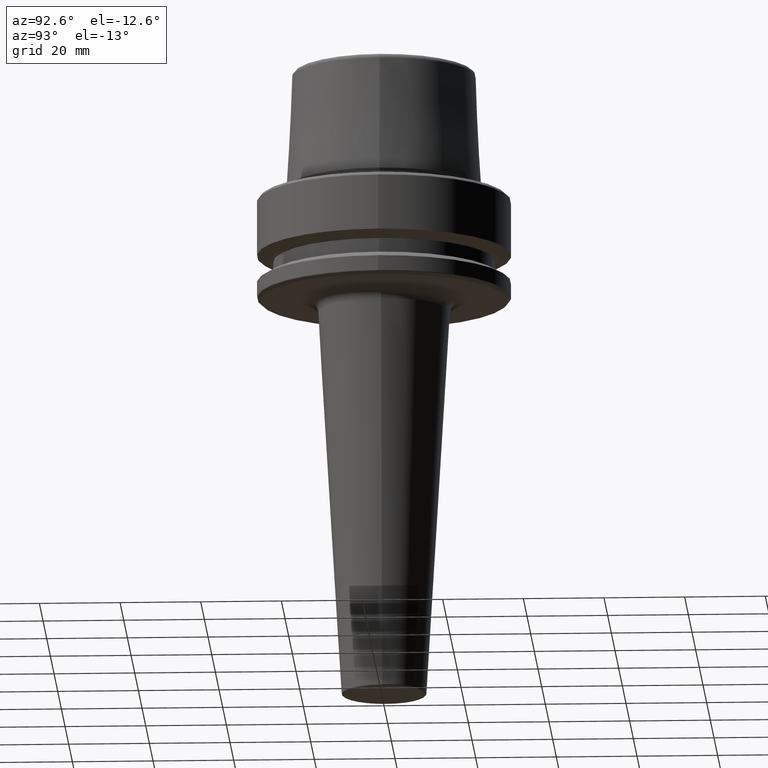
[diagram: clean part render]
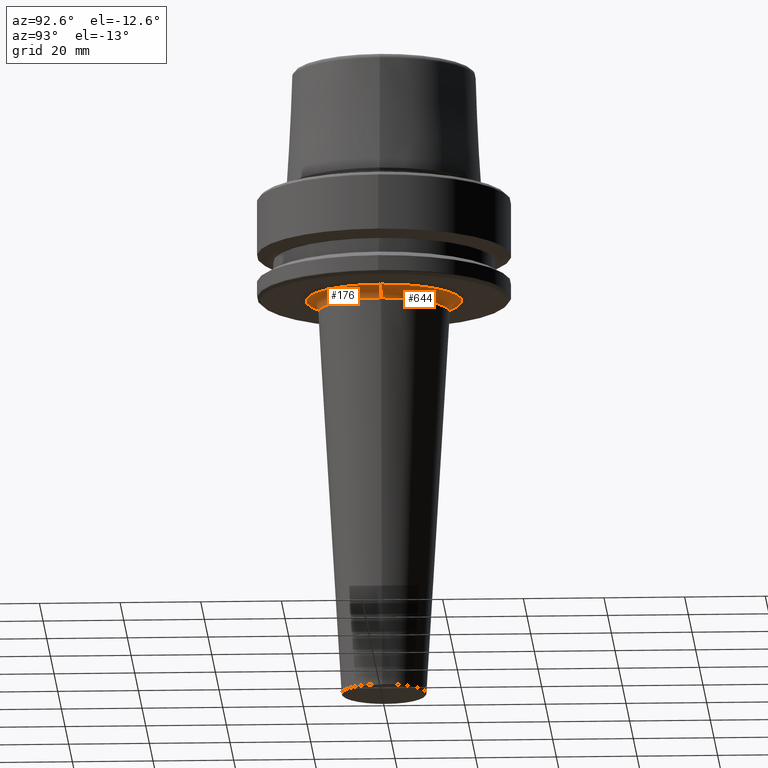
[diagram: same view with one multi-face feature highlighted, each face labeled with its STEP entity id]
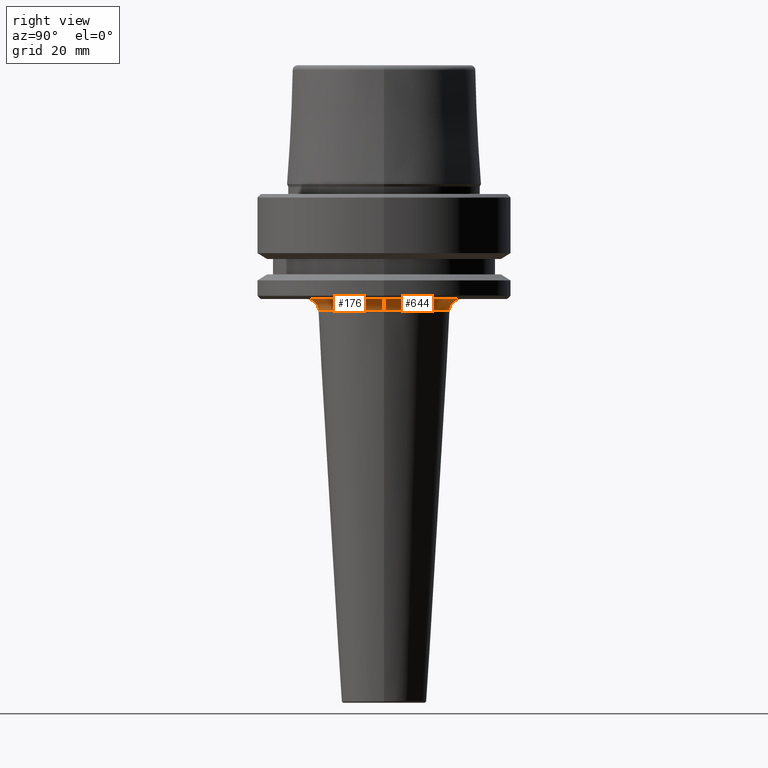
[diagram: same view with one multi-face feature highlighted, each face labeled with its STEP entity id]
A machine part, auxiliary view. The highlighted faces form ONE feature: a constant-radius fillet chain: 2 tangent blend faces with common blend radius 3 mm. The faces share edges in the B-rep.
A second angle (right view) of the same feature is appended — it is thin or edge-on in the first view.
Their STEP definitions:
[1] entity #644 (Torus):
#125 = DIRECTION ( 'NONE',  ( 1.224646799147353200E-016, 1.000000000000000000, 0.0000000000000000000 ) ) ;
#224 = DIRECTION ( 'NONE',  ( 0.0000000000000000000, -1.000000000000000000, 0.0000000000000000000 ) ) ;
#291 = EDGE_CURVE ( 'NONE', #571, #870, #566, .T. ) ;
#311 = ORIENTED_EDGE ( 'NONE', *, *, #333, .T. ) ;
#333 = EDGE_CURVE ( 'NONE', #814, #1257, #508, .T. ) ;
#403 = CARTESIAN_POINT ( 'NONE',  ( 0.0000000000000000000, 0.0000000000000000000, -28.82032312781617000 ) ) ;
#430 = CARTESIAN_POINT ( 'NONE',  ( 0.0000000000000000000, 0.0000000000000000000, -26.00000000000001100 ) ) ;
#437 = CARTESIAN_POINT ( 'NONE',  ( -19.32539514872835800, 2.366678331114797300E-015, -26.00000000000001100 ) ) ;
#462 = AXIS2_PLACEMENT_3D ( 'NONE', #809, #224, #909 ) ;
#499 = DIRECTION ( 'NONE',  ( 1.000000000000000000, 0.0000000000000000000, 0.0000000000000000000 ) ) ;
#508 = CIRCLE ( 'NONE', #462, 2.999999999999999100 ) ;
#526 = DIRECTION ( 'NONE',  ( 1.000000000000000000, 0.0000000000000000000, 0.0000000000000000000 ) ) ;
#554 = ORIENTED_EDGE ( 'NONE', *, *, #291, .F. ) ;
#566 = CIRCLE ( 'NONE', #1170, 2.999999999999999100 ) ;
#570 = FACE_OUTER_BOUND ( 'NONE', #935, .T. ) ;
#571 = VERTEX_POINT ( 'NONE', #437 ) ;
#583 = CARTESIAN_POINT ( 'NONE',  ( 19.32539514872835800, 0.0000000000000000000, -26.00000000000001100 ) ) ;
#586 = CARTESIAN_POINT ( 'NONE',  ( -16.33078061233102600, 1.999943820446884200E-015, -28.82032312781617000 ) ) ;
#644 = ADVANCED_FACE ( 'NONE', ( #570 ), #840, .F. ) ;
#704 = AXIS2_PLACEMENT_3D ( 'NONE', #831, #1232, #739 ) ;
#706 = CARTESIAN_POINT ( 'NONE',  ( -19.32539514872835800, 2.366678331114797300E-015, -29.00000000000000700 ) ) ;
#739 = DIRECTION ( 'NONE',  ( 1.000000000000000000, 0.0000000000000000000, 0.0000000000000000000 ) ) ;
#794 = ORIENTED_EDGE ( 'NONE', *, *, #1082, .F. ) ;
#806 = DIRECTION ( 'NONE',  ( -1.000000000000000000, 1.224646799147353500E-016, 0.0000000000000000000 ) ) ;
#809 = CARTESIAN_POINT ( 'NONE',  ( 19.32539514872835800, 0.0000000000000000000, -29.00000000000000700 ) ) ;
#814 = VERTEX_POINT ( 'NONE', #583 ) ;
#831 = CARTESIAN_POINT ( 'NONE',  ( 0.0000000000000000000, 0.0000000000000000000, -29.00000000000000700 ) ) ;
#840 = TOROIDAL_SURFACE ( 'NONE', #704, 19.32539514872835800, 3.000000000000000000 ) ;
#859 = CARTESIAN_POINT ( 'NONE',  ( 16.33078061233102600, 0.0000000000000000000, -28.82032312781617000 ) ) ;
#870 = VERTEX_POINT ( 'NONE', #586 ) ;
#894 = CIRCLE ( 'NONE', #1080, 16.33078061233102600 ) ;
#909 = DIRECTION ( 'NONE',  ( 0.0000000000000000000, 0.0000000000000000000, -1.000000000000000000 ) ) ;
#935 = EDGE_LOOP ( 'NONE', ( #554, #794, #311, #1230 ) ) ;
#980 = AXIS2_PLACEMENT_3D ( 'NONE', #430, #1114, #526 ) ;
#1025 = EDGE_CURVE ( 'NONE', #870, #1257, #894, .T. ) ;
#1080 = AXIS2_PLACEMENT_3D ( 'NONE', #403, #1085, #499 ) ;
#1082 = EDGE_CURVE ( 'NONE', #814, #571, #1121, .T. ) ;
#1085 = DIRECTION ( 'NONE',  ( -0.0000000000000000000, -0.0000000000000000000, -1.000000000000000000 ) ) ;
#1114 = DIRECTION ( 'NONE',  ( -0.0000000000000000000, -0.0000000000000000000, 1.000000000000000000 ) ) ;
#1121 = CIRCLE ( 'NONE', #980, 19.32539514872835800 ) ;
#1170 = AXIS2_PLACEMENT_3D ( 'NONE', #706, #125, #806 ) ;
#1230 = ORIENTED_EDGE ( 'NONE', *, *, #1025, .F. ) ;
#1232 = DIRECTION ( 'NONE',  ( -0.0000000000000000000, -0.0000000000000000000, 1.000000000000000000 ) ) ;
#1257 = VERTEX_POINT ( 'NONE', #859 ) ;
[2] entity #176 (Torus):
#125 = DIRECTION ( 'NONE',  ( 1.224646799147353200E-016, 1.000000000000000000, 0.0000000000000000000 ) ) ;
#137 = FACE_OUTER_BOUND ( 'NONE', #377, .T. ) ;
#164 = ORIENTED_EDGE ( 'NONE', *, *, #291, .T. ) ;
#176 = ADVANCED_FACE ( 'NONE', ( #137 ), #386, .F. ) ;
#215 = CARTESIAN_POINT ( 'NONE',  ( 0.0000000000000000000, 0.0000000000000000000, -28.82032312781617000 ) ) ;
#224 = DIRECTION ( 'NONE',  ( 0.0000000000000000000, -1.000000000000000000, 0.0000000000000000000 ) ) ;
#290 = CARTESIAN_POINT ( 'NONE',  ( 0.0000000000000000000, 0.0000000000000000000, -29.00000000000000700 ) ) ;
#291 = EDGE_CURVE ( 'NONE', #571, #870, #566, .T. ) ;
#305 = DIRECTION ( 'NONE',  ( 1.000000000000000000, 0.0000000000000000000, 0.0000000000000000000 ) ) ;
#333 = EDGE_CURVE ( 'NONE', #814, #1257, #508, .T. ) ;
#342 = CIRCLE ( 'NONE', #828, 16.33078061233102600 ) ;
#377 = EDGE_LOOP ( 'NONE', ( #601, #164, #413, #1008 ) ) ;
#383 = DIRECTION ( 'NONE',  ( 1.000000000000000000, 0.0000000000000000000, 0.0000000000000000000 ) ) ;
#384 = EDGE_CURVE ( 'NONE', #571, #814, #1234, .T. ) ;
#386 = TOROIDAL_SURFACE ( 'NONE', #1049, 19.32539514872835800, 3.000000000000000000 ) ;
#413 = ORIENTED_EDGE ( 'NONE', *, *, #685, .F. ) ;
#437 = CARTESIAN_POINT ( 'NONE',  ( -19.32539514872835800, 2.366678331114797300E-015, -26.00000000000001100 ) ) ;
#450 = CARTESIAN_POINT ( 'NONE',  ( 0.0000000000000000000, 0.0000000000000000000, -26.00000000000001100 ) ) ;
#462 = AXIS2_PLACEMENT_3D ( 'NONE', #809, #224, #909 ) ;
#508 = CIRCLE ( 'NONE', #462, 2.999999999999999100 ) ;
#544 = DIRECTION ( 'NONE',  ( 1.000000000000000000, 0.0000000000000000000, 0.0000000000000000000 ) ) ;
#566 = CIRCLE ( 'NONE', #1170, 2.999999999999999100 ) ;
#571 = VERTEX_POINT ( 'NONE', #437 ) ;
#583 = CARTESIAN_POINT ( 'NONE',  ( 19.32539514872835800, 0.0000000000000000000, -26.00000000000001100 ) ) ;
#586 = CARTESIAN_POINT ( 'NONE',  ( -16.33078061233102600, 1.999943820446884200E-015, -28.82032312781617000 ) ) ;
#601 = ORIENTED_EDGE ( 'NONE', *, *, #384, .F. ) ;
#639 = AXIS2_PLACEMENT_3D ( 'NONE', #450, #1132, #544 ) ;
#685 = EDGE_CURVE ( 'NONE', #1257, #870, #342, .T. ) ;
#706 = CARTESIAN_POINT ( 'NONE',  ( -19.32539514872835800, 2.366678331114797300E-015, -29.00000000000000700 ) ) ;
#806 = DIRECTION ( 'NONE',  ( -1.000000000000000000, 1.224646799147353500E-016, 0.0000000000000000000 ) ) ;
#809 = CARTESIAN_POINT ( 'NONE',  ( 19.32539514872835800, 0.0000000000000000000, -29.00000000000000700 ) ) ;
#814 = VERTEX_POINT ( 'NONE', #583 ) ;
#828 = AXIS2_PLACEMENT_3D ( 'NONE', #215, #897, #305 ) ;
#859 = CARTESIAN_POINT ( 'NONE',  ( 16.33078061233102600, 0.0000000000000000000, -28.82032312781617000 ) ) ;
#870 = VERTEX_POINT ( 'NONE', #586 ) ;
#897 = DIRECTION ( 'NONE',  ( -0.0000000000000000000, -0.0000000000000000000, -1.000000000000000000 ) ) ;
#909 = DIRECTION ( 'NONE',  ( 0.0000000000000000000, 0.0000000000000000000, -1.000000000000000000 ) ) ;
#977 = DIRECTION ( 'NONE',  ( -0.0000000000000000000, -0.0000000000000000000, 1.000000000000000000 ) ) ;
#1008 = ORIENTED_EDGE ( 'NONE', *, *, #333, .F. ) ;
#1049 = AXIS2_PLACEMENT_3D ( 'NONE', #290, #977, #383 ) ;
#1132 = DIRECTION ( 'NONE',  ( -0.0000000000000000000, -0.0000000000000000000, 1.000000000000000000 ) ) ;
#1170 = AXIS2_PLACEMENT_3D ( 'NONE', #706, #125, #806 ) ;
#1234 = CIRCLE ( 'NONE', #639, 19.32539514872835800 ) ;
#1257 = VERTEX_POINT ( 'NONE', #859 ) ;